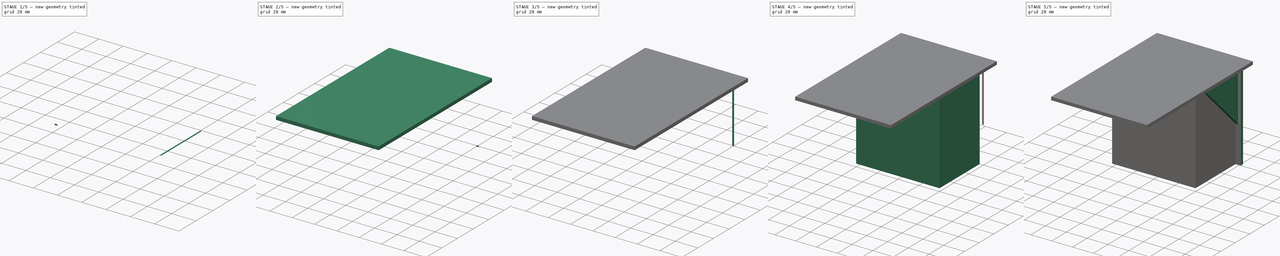
[diagram: build sequence overview — one tinted view per stage of 5, left to right]
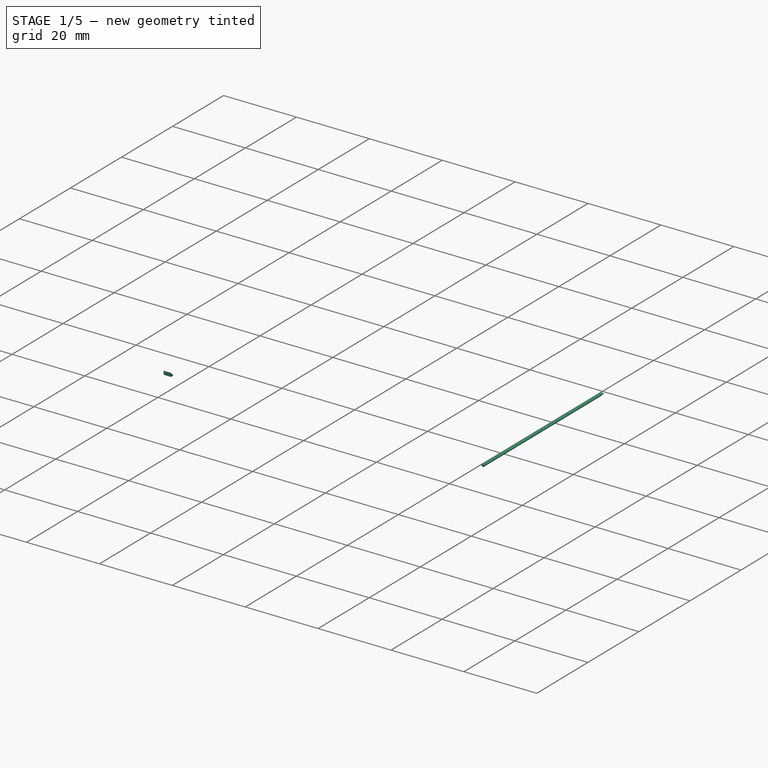
[diagram: stage 1 of 5 — iso view after this stage's code; geometry added in this stage tinted green]
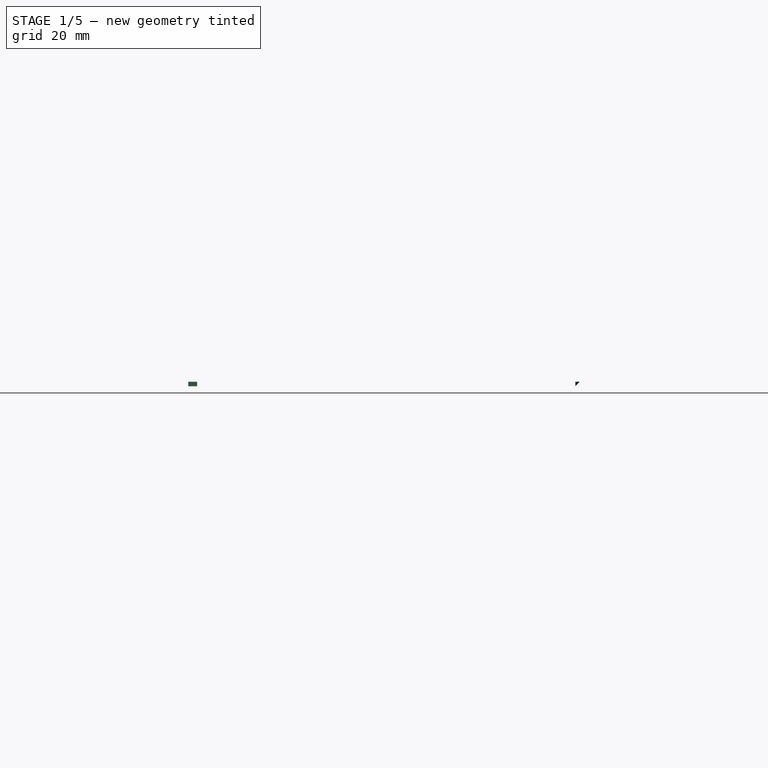
[diagram: stage 1 of 5 — front view after this stage's code; geometry added in this stage tinted green]
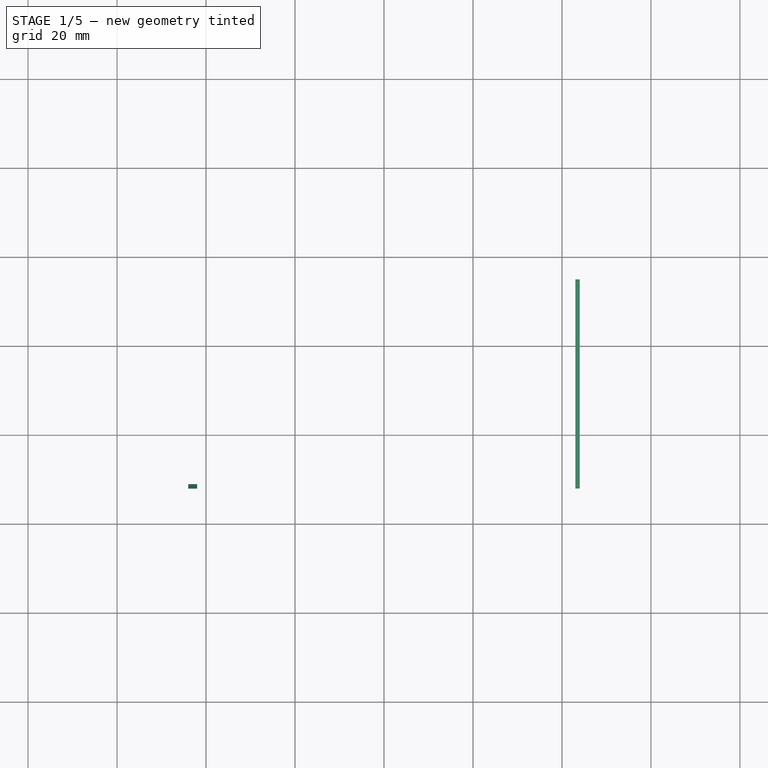
[diagram: stage 1 of 5 — top view after this stage's code; geometry added in this stage tinted green]
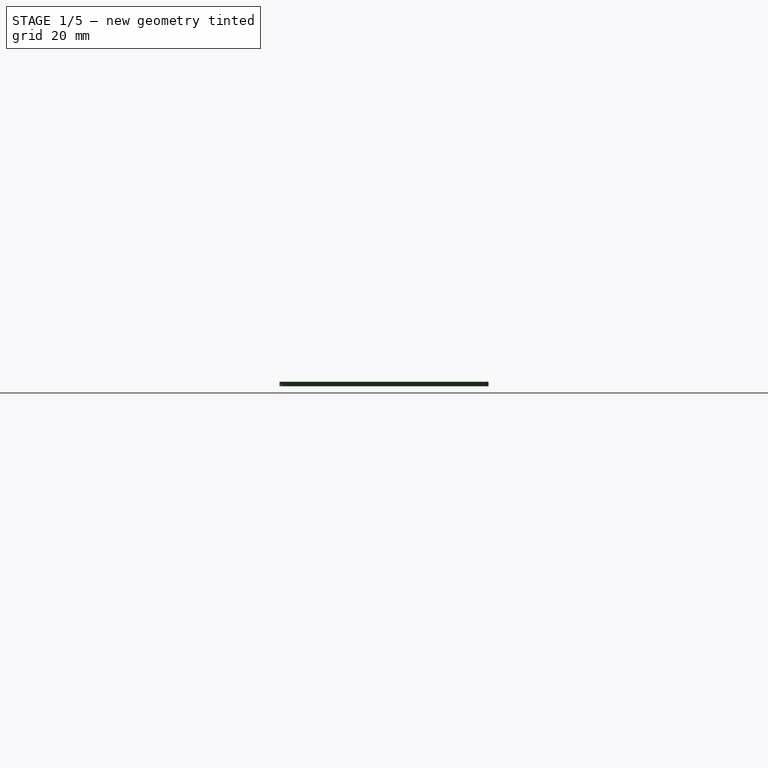
[diagram: stage 1 of 5 — right view after this stage's code; geometry added in this stage tinted green]
FCSTD DOCUMENT  (FreeCAD 0.16R6712 (Git))
Label: Enclosure_supports_with_Hood02
License: All rights reserved
LicenseURL: http://en.wikipedia.org/wiki/All_rights_reserved
objects: Sketcher::SketchObject×15, PartDesign::Pad×15, Part::Chamfer×6, Part::Cut×4, Part::Box×1
note: 56 computed .brp shape members not serialized (recipe doc carries the construction recipe); baked Part::Feature solids carry a one-line shape summary decoded from their .brp

FEATURE [PartDesign::Pad] Pad015
  Length = 1
  Length2 = 100
  Placement = pos=(0,0,82) rot=(0,0,1;0rad)
  Reversed = true
  Sketch = -> Sketch010
  Type = 0
FEATURE [Sketcher::SketchObject] Sketch011
  Placement = pos=(-2,0,0) rot=(0.57735,0.57735,0.57735;2.0944rad)
  sketch-geometry (3):
    g0: LineSegment StartX=8 StartY=82 StartZ=0 EndX=9 EndY=81 EndZ=0
    g1: LineSegment StartX=9 StartY=81 StartZ=0 EndX=8 EndY=81 EndZ=0
    g2: LineSegment StartX=8 StartY=81 StartZ=0 EndX=8 EndY=82 EndZ=0
  constraints (9):
    c: Coincident(g0,g1)
    c: Coincident(g1,g2)
    c: Coincident(g2,g0)
    c: DistanceY(g-1,g0) = 82
    c: DistanceX(g-1,g0) = 8
    c: Distance(g2) = 1
    c: Distance(g1) = 1
    c: DistanceY(g-1,g0) = 81
    c: DistanceX(g-1,g0) = 9
FEATURE [PartDesign::Pad] Pad016
  Length = 2
  Length2 = 100
  Placement = pos=(-2,0,0) rot=(0.57735,0.57735,0.57735;2.0944rad)
  Reversed = true
  Sketch = -> Sketch011
  Type = 0
FEATURE [Sketcher::SketchObject] Sketch012
  Placement = pos=(83,0,0) rot=(0.57735,0.57735,0.57735;2.0944rad)
  sketch-geometry (3):
    g0: LineSegment StartX=8 StartY=81 StartZ=0 EndX=8.99996 EndY=80.991 EndZ=0
    g1: LineSegment StartX=8.99996 StartY=80.991 StartZ=0 EndX=8 EndY=82 EndZ=0
    g2: LineSegment StartX=8 StartY=82 StartZ=0 EndX=8 EndY=81 EndZ=0
  constraints (8):
    c: Coincident(g0,g1)
    c: Coincident(g1,g2)
    c: Coincident(g2,g0)
    c: DistanceY(g1) = 82
    c: DistanceX(g-1,g1) = 8
    c: Distance(g2) = 1
    c: Distance(g0) = 1
    c: DistanceX(g-1,g0) = 8
FEATURE [PartDesign::Pad] Pad017
  Length = 2
  Length2 = 100
  Placement = pos=(83,0,0) rot=(0.57735,0.57735,0.57735;2.0944rad)
  Sketch = -> Sketch012
  Type = 0
FEATURE [Part::Cut] Cut001
  Base = -> Pad015
  Tool = -> Pad017
FEATURE [Part::Chamfer] Chamfer005
  Base = -> Cut001
  Edges = 1 edges r=0.99: [Edge6]
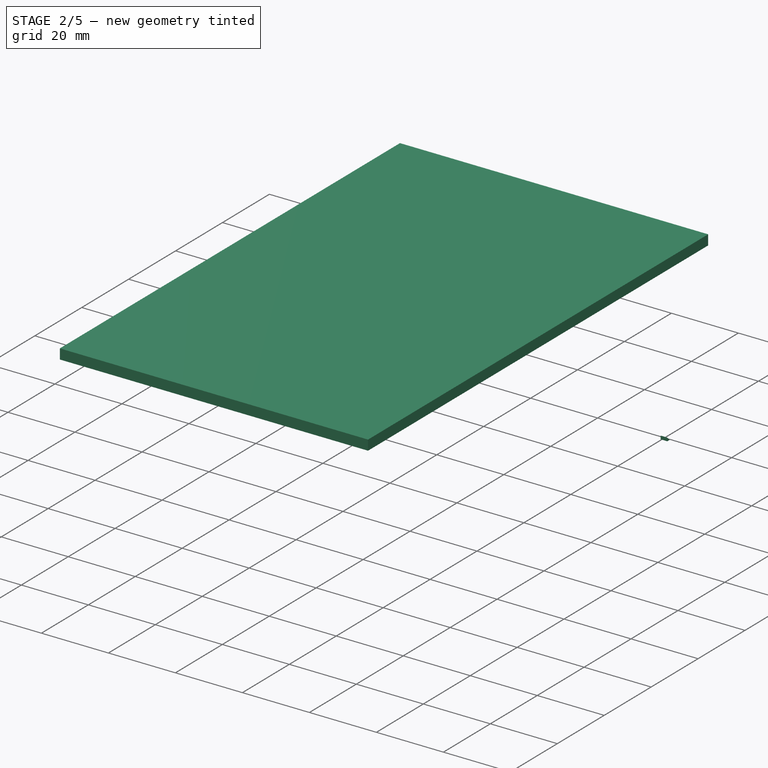
[diagram: stage 2 of 5 — iso view after this stage's code; geometry added in this stage tinted green]
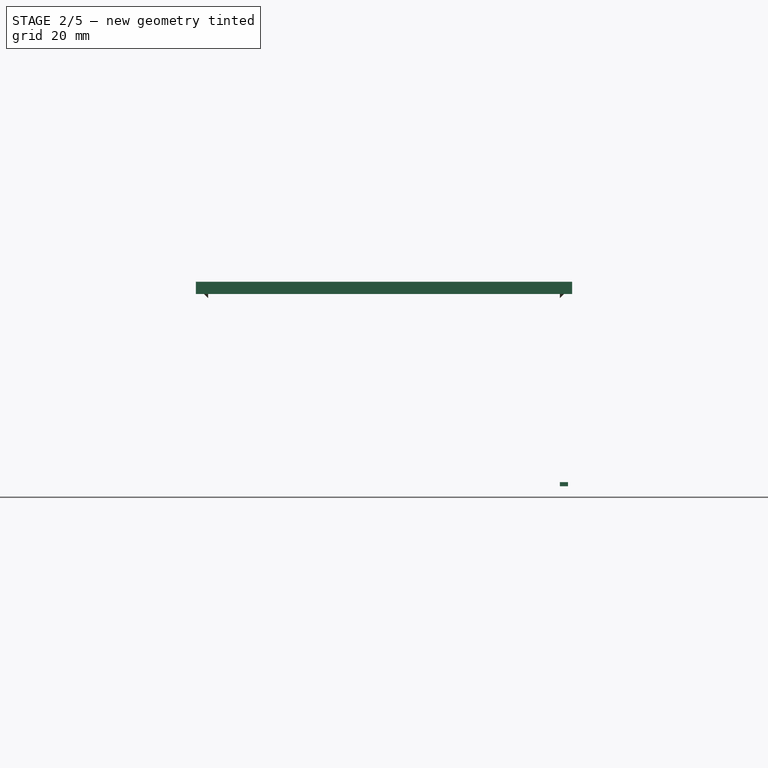
[diagram: stage 2 of 5 — front view after this stage's code; geometry added in this stage tinted green]
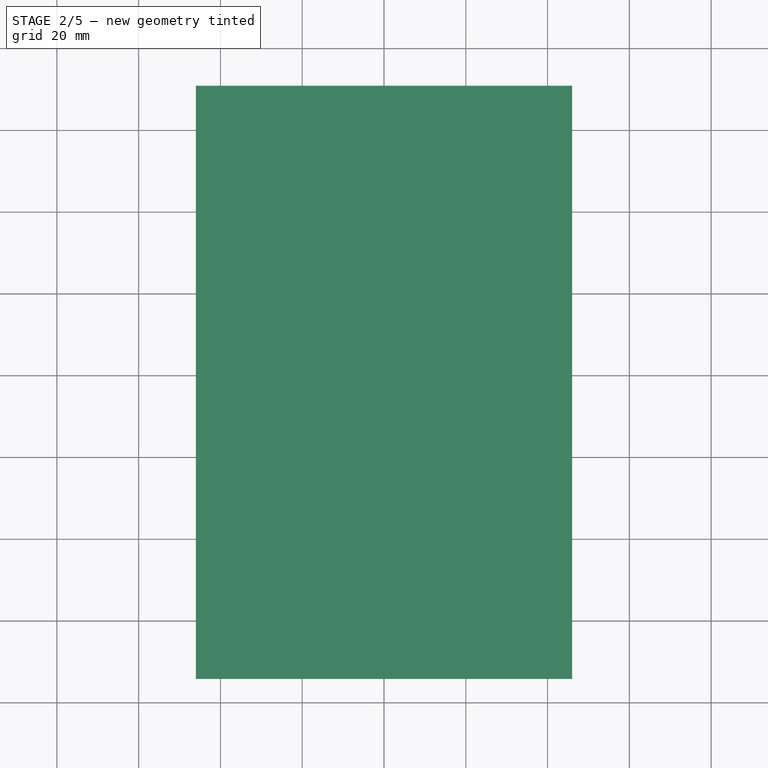
[diagram: stage 2 of 5 — top view after this stage's code; geometry added in this stage tinted green]
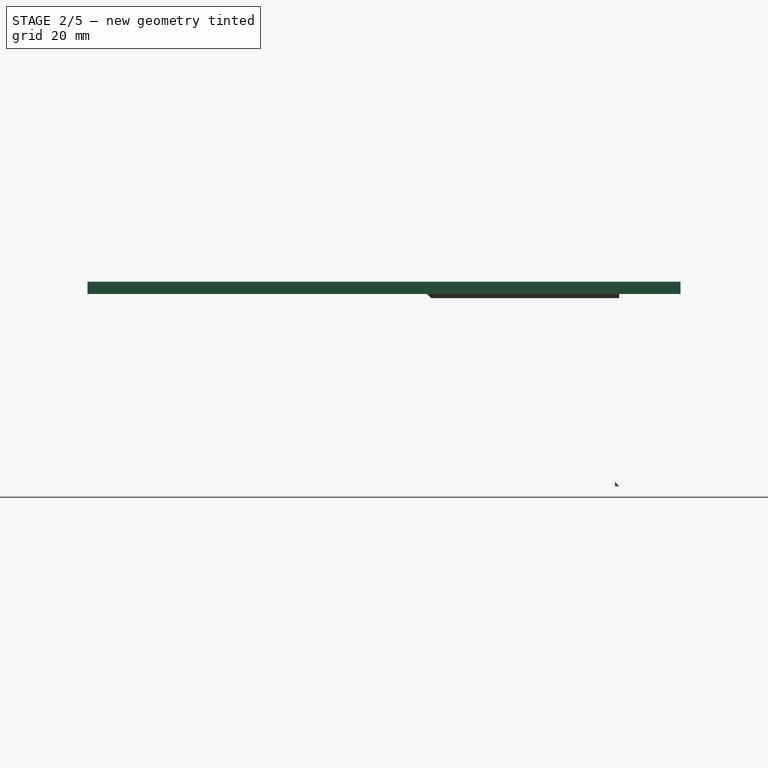
[diagram: stage 2 of 5 — right view after this stage's code; geometry added in this stage tinted green]
FEATURE [PartDesign::Pad] Pad007
  Length = 3
  Length2 = 100
  Placement = pos=(0,0,82) rot=(0,0,1;0rad)
  Sketch = -> Sketch002
  Type = 0
FEATURE [Sketcher::SketchObject] Sketch009
  Placement = pos=(0,0,82) rot=(1,0,0;3.14159rad)
  Support = -> Pad007 [Face5]
  sketch-geometry (4):
    g0: LineSegment StartX=-4 StartY=-8 StartZ=0 EndX=-3 EndY=-8 EndZ=0
    g1: LineSegment StartX=-3 StartY=-8 StartZ=0 EndX=-3 EndY=-55 EndZ=0
    g2: LineSegment StartX=-3 StartY=-55 StartZ=0 EndX=-4 EndY=-55 EndZ=0
    g3: LineSegment StartX=-4 StartY=-55 StartZ=0 EndX=-4 EndY=-8 EndZ=0
  constraints (12):
    c: Coincident(g0,g1)
    c: Coincident(g1,g2)
    c: Coincident(g2,g3)
    c: Coincident(g3,g0)
    c: Horizontal(g0)
    c: Horizontal(g2)
    c: Vertical(g1)
    c: Vertical(g3)
    c: Distance(g0) = 1
    c: Distance(g3) = 47
    c: DistanceY(g0,g-1) = 8
    c: DistanceX(g0,g-1) = 3
FEATURE [Sketcher::SketchObject] Sketch010
  Placement = pos=(0,0,82) rot=(0,0,1;0rad)
  sketch-geometry (4):
    g0: LineSegment StartX=84 StartY=55 StartZ=0 EndX=83 EndY=55 EndZ=0
    g1: LineSegment StartX=83 StartY=55 StartZ=0 EndX=83 EndY=8 EndZ=0
    g2: LineSegment StartX=83 StartY=8 StartZ=0 EndX=84 EndY=8 EndZ=0
    g3: LineSegment StartX=84 StartY=8 StartZ=0 EndX=84 EndY=55 EndZ=0
  constraints (12):
    c: Coincident(g0,g1)
    c: Coincident(g1,g2)
    c: Coincident(g2,g3)
    c: Coincident(g3,g0)
    c: Horizontal(g0)
    c: Horizontal(g2)
    c: Vertical(g1)
    c: Vertical(g3)
    c: Distance(g1) = 47
    c: Distance(g0) = 1
    c: DistanceX(g-1,g2) = 84
    c: DistanceY(g-1,g2) = 8
FEATURE [PartDesign::Pad] Pad014
  Length = 1
  Length2 = 100
  Placement = pos=(0,0,82) rot=(0,0,1;0rad)
  Sketch = -> Sketch009
  Type = 0
FEATURE [Part::Cut] Cut
  Base = -> Pad014
  Tool = -> Pad016
FEATURE [Sketcher::SketchObject] Sketch014
  Placement = pos=(83,0,0) rot=(0.57735,-0.57735,-0.57735;2.0944rad)
  sketch-geometry (3):
    g0: LineSegment StartX=-55 StartY=35 StartZ=0 EndX=-54 EndY=35 EndZ=0
    g1: LineSegment StartX=-54 StartY=35 StartZ=0 EndX=-54 EndY=36 EndZ=0
    g2: LineSegment StartX=-54 StartY=36 StartZ=0 EndX=-55 EndY=35 EndZ=0
  constraints (9):
    c: Coincident(g0,g1)
    c: Coincident(g1,g2)
    c: Coincident(g2,g0)
    c: DistanceX(g0) = -55
    c: DistanceY(g0) = 35
    c: DistanceX(g1) = -54
    c: DistanceY(g1) = 36
    c: Equal(g0,g1)
    c: Distance(g1) = 1
FEATURE [PartDesign::Pad] Pad019
  Length = 2
  Length2 = 100
  Placement = pos=(83,0,0) rot=(0.57735,-0.57735,-0.57735;2.0944rad)
  Reversed = true
  Sketch = -> Sketch014
  Type = 0
FEATURE [Part::Chamfer] Chamfer004
  Base = -> Cut
  Edges = 1 edges r=0.99: [Edge25]
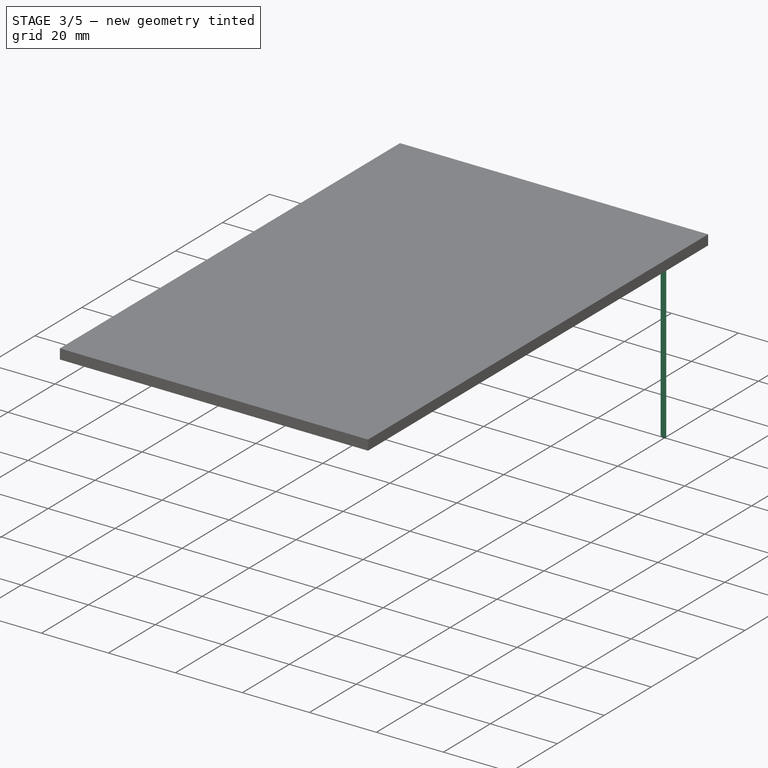
[diagram: stage 3 of 5 — iso view after this stage's code; geometry added in this stage tinted green]
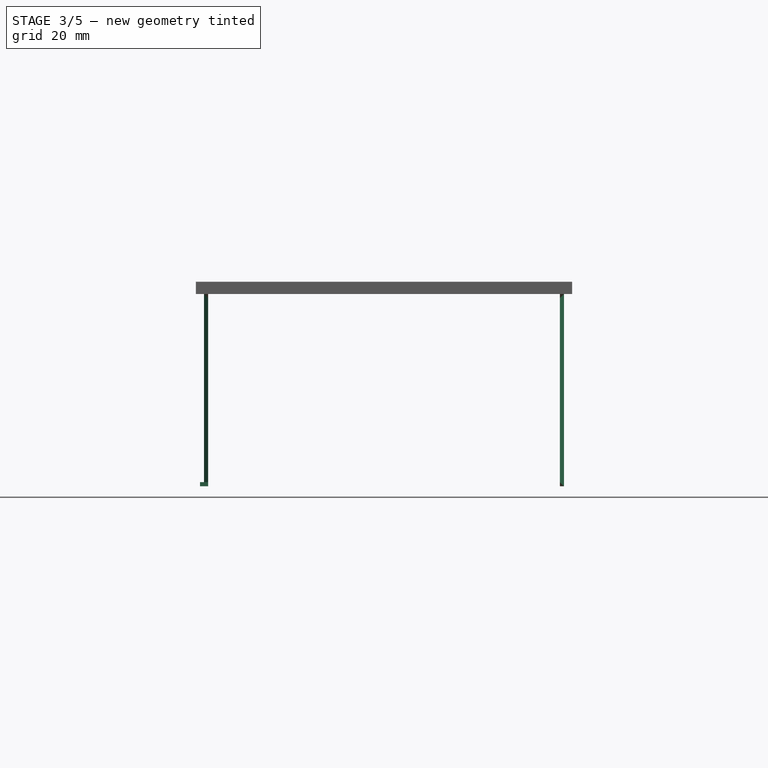
[diagram: stage 3 of 5 — front view after this stage's code; geometry added in this stage tinted green]
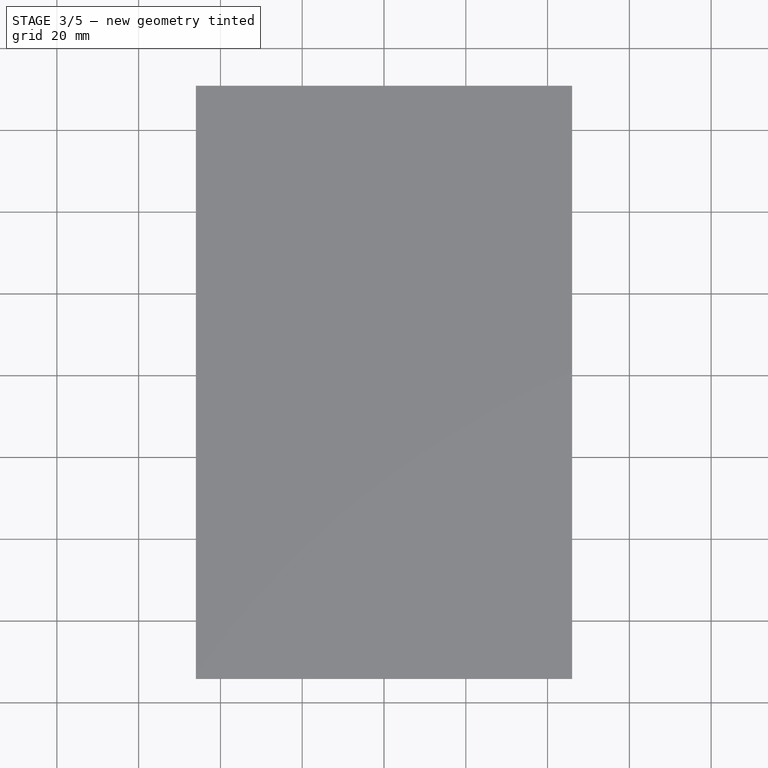
[diagram: stage 3 of 5 — top view after this stage's code; geometry added in this stage tinted green]
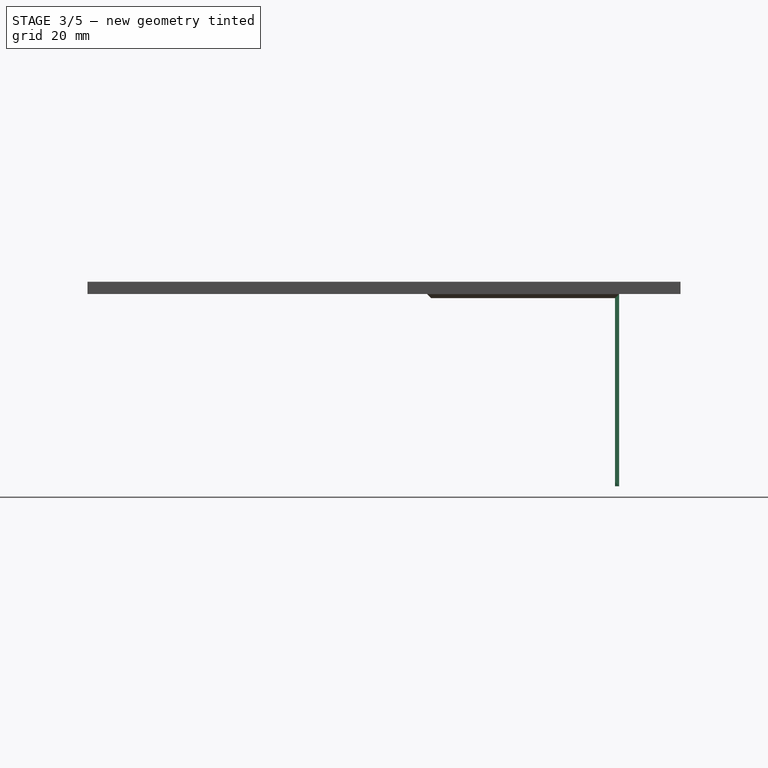
[diagram: stage 3 of 5 — right view after this stage's code; geometry added in this stage tinted green]
FEATURE [Sketcher::SketchObject] Sketch007
  Placement = pos=(-3,0,0) rot=(0.57735,0.57735,0.57735;2.0944rad)
  sketch-geometry (4):
    g0: LineSegment StartX=55 StartY=82 StartZ=0 EndX=54 EndY=82 EndZ=0
    g1: LineSegment StartX=54 StartY=82 StartZ=0 EndX=54 EndY=35 EndZ=0
    g2: LineSegment StartX=54 StartY=35 StartZ=0 EndX=55 EndY=35 EndZ=0
    g3: LineSegment StartX=55 StartY=35 StartZ=0 EndX=55 EndY=82 EndZ=0
  constraints (12):
    c: Coincident(g0,g1)
    c: Coincident(g1,g2)
    c: Coincident(g2,g3)
    c: Coincident(g3,g0)
    c: Horizontal(g0)
    c: Horizontal(g2)
    c: Vertical(g1)
    c: Vertical(g3)
    c: Distance(g1) = 47
    c: Distance(g0) = 1
    c: DistanceX(g-1,g2) = 55
    c: DistanceY(g-1,g0) = 82
FEATURE [PartDesign::Pad] Pad012
  Length = 1
  Length2 = 100
  Placement = pos=(-3,0,0) rot=(0.57735,0.57735,0.57735;2.0944rad)
  Reversed = true
  Sketch = -> Sketch007
  Type = 0
FEATURE [Sketcher::SketchObject] Sketch008
  Placement = pos=(83,0,0) rot=(0.57735,0.57735,0.57735;2.0944rad)
  sketch-geometry (4):
    g0: LineSegment StartX=54 StartY=82 StartZ=0 EndX=55 EndY=82 EndZ=0
    g1: LineSegment StartX=55 StartY=82 StartZ=0 EndX=55 EndY=35 EndZ=0
    g2: LineSegment StartX=55 StartY=35 StartZ=0 EndX=54 EndY=35 EndZ=0
    g3: LineSegment StartX=54 StartY=35 StartZ=0 EndX=54 EndY=82 EndZ=0
  constraints (12):
    c: Coincident(g0,g1)
    c: Coincident(g1,g2)
    c: Coincident(g2,g3)
    c: Coincident(g3,g0)
    c: Horizontal(g0)
    c: Horizontal(g2)
    c: Vertical(g1)
    c: Vertical(g3)
    c: Distance(g1) = 47
    c: Distance(g2) = 1
    c: DistanceX(g-1,g1) = 55
    c: DistanceY(g-1,g0) = 82
FEATURE [PartDesign::Pad] Pad013
  Length = 1
  Length2 = 100
  Placement = pos=(83,0,0) rot=(0.57735,0.57735,0.57735;2.0944rad)
  Sketch = -> Sketch008
  Type = 0
FEATURE [Part::Chamfer] Chamfer002
  Base = -> Pad013
  Edges = 1 edges r=0.99: [Edge12]
FEATURE [Part::Chamfer] Chamfer003
  Base = -> Pad012
  Edges = 1 edges r=0.99: [Edge7]
FEATURE [Sketcher::SketchObject] Sketch013
  Placement = pos=(-3,0,0) rot=(0.57735,0.57735,0.57735;2.0944rad)
  sketch-geometry (3):
    g0: LineSegment StartX=54 StartY=36 StartZ=0 EndX=54 EndY=35 EndZ=0
    g1: LineSegment StartX=54 StartY=35 StartZ=0 EndX=55 EndY=35 EndZ=0
    g2: LineSegment StartX=55 StartY=35 StartZ=0 EndX=54 EndY=36 EndZ=0
  constraints (9):
    c: Coincident(g0,g1)
    c: Horizontal(g1)
    c: Coincident(g1,g2)
    c: Coincident(g2,g0)
    c: DistanceY(g-1,g0) = 36
    c: DistanceX(g-1,g0) = 54
    c: Distance(g1) = 1
    c: DistanceY(g-1,g1) = 35
    c: DistanceX(g-1,g1) = 55
FEATURE [PartDesign::Pad] Pad018
  Length = 2
  Length2 = 100
  Placement = pos=(-3,0,0) rot=(0.57735,0.57735,0.57735;2.0944rad)
  Reversed = true
  Sketch = -> Sketch013
  Type = 0
FEATURE [Part::Cut] Cut003
  Base = -> Chamfer002
  Tool = -> Pad019
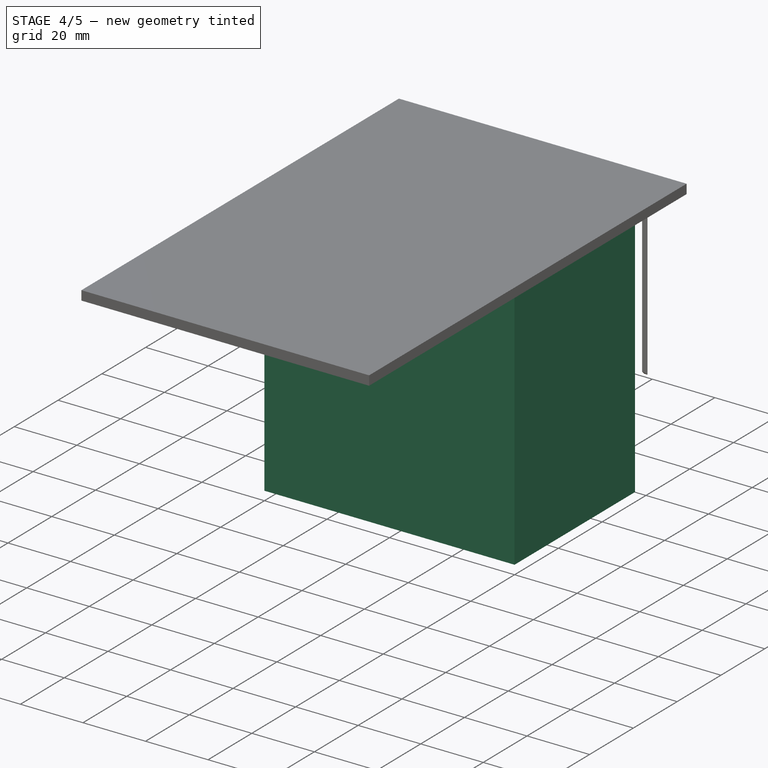
[diagram: stage 4 of 5 — iso view after this stage's code; geometry added in this stage tinted green]
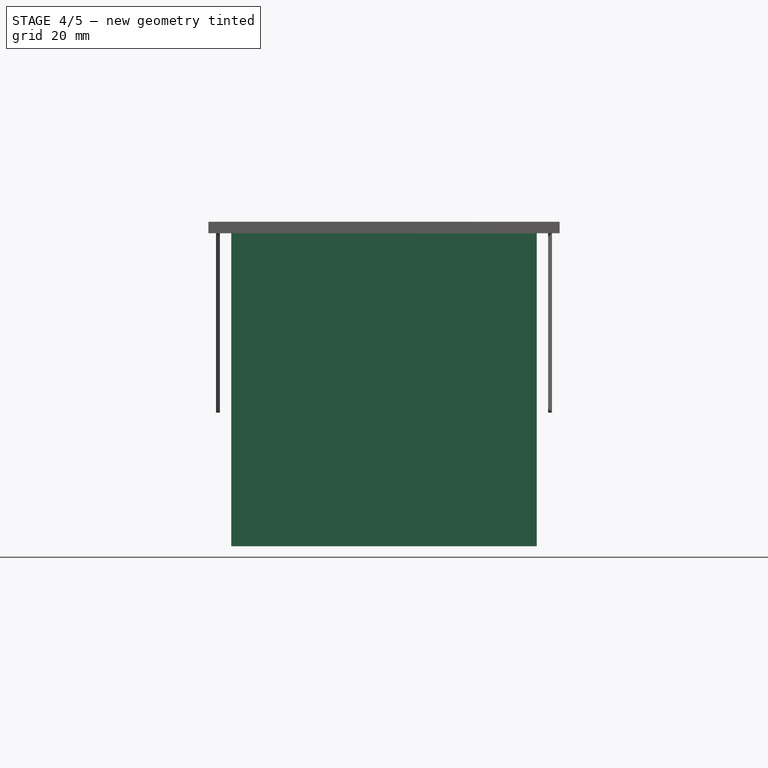
[diagram: stage 4 of 5 — front view after this stage's code; geometry added in this stage tinted green]
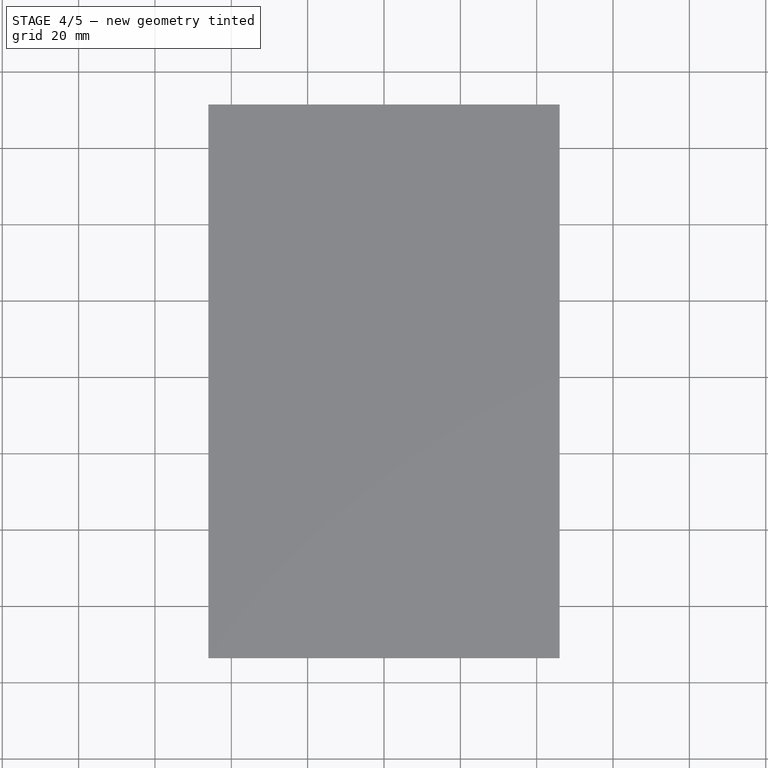
[diagram: stage 4 of 5 — top view after this stage's code; geometry added in this stage tinted green]
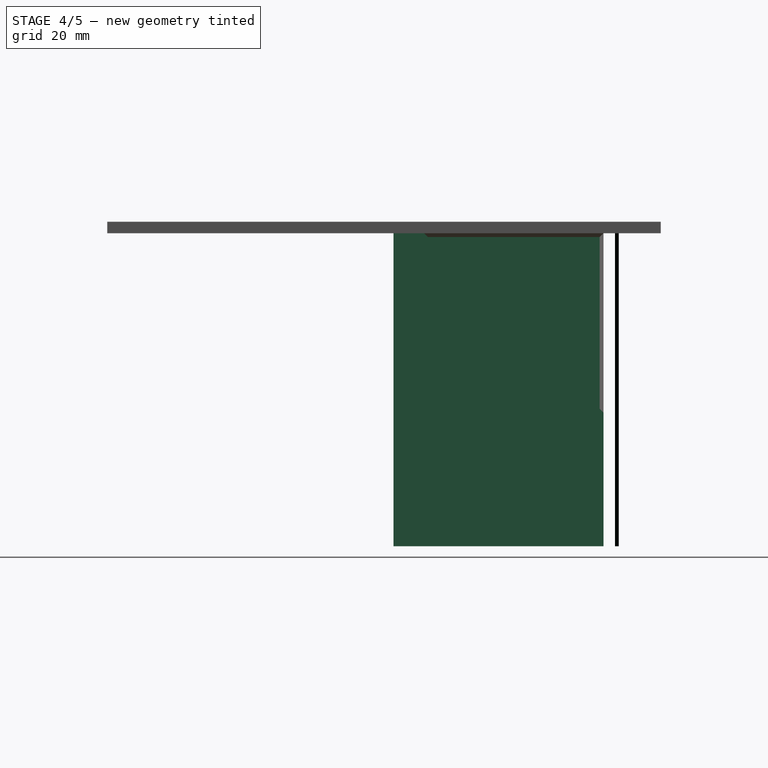
[diagram: stage 4 of 5 — right view after this stage's code; geometry added in this stage tinted green]
FEATURE [Part::Box] Box  label="Cube"
  Height = 82
  Length = 80
  Width = 55
FEATURE [Sketcher::SketchObject] Sketch006
  Placement = pos=(0,59,0) rot=(1,0,0;1.5708rad)
  sketch-geometry (8):
    g0: LineSegment StartX=6 StartY=82 StartZ=0 EndX=7 EndY=82 EndZ=0
    g1: LineSegment StartX=7 StartY=82 StartZ=0 EndX=7 EndY=0 EndZ=0
    g2: LineSegment StartX=7 StartY=0 StartZ=0 EndX=6 EndY=0 EndZ=0
    g3: LineSegment StartX=6 StartY=0 StartZ=0 EndX=6 EndY=82 EndZ=0
    g4: LineSegment StartX=74 StartY=82 StartZ=0 EndX=73 EndY=82 EndZ=0
    g5: LineSegment StartX=73 StartY=82 StartZ=0 EndX=73 EndY=0 EndZ=0
    g6: LineSegment StartX=73 StartY=0 StartZ=0 EndX=74 EndY=0 EndZ=0
    g7: LineSegment StartX=74 StartY=0 StartZ=0 EndX=74 EndY=82 EndZ=0
  constraints (23):
    c: Coincident(g0,g1)
    c: Coincident(g1,g2)
    c: Coincident(g2,g3)
    c: Coincident(g3,g0)
    c: Horizontal(g0)
    c: Horizontal(g2)
    c: Vertical(g1)
    c: Vertical(g3)
    c: Coincident(g4,g5)
    c: Coincident(g5,g6)
    c: Coincident(g6,g7)
    c: Coincident(g7,g4)
    c: Horizontal(g4)
    c: Horizontal(g6)
    c: Vertical(g5)
    c: Vertical(g7)
    c: PointOnObject(g5,g-1)
    c: Equal(g3,g7)
    c: Distance(g3) = 82
    c: Equal(g0,g4)
    c: Distance(g0) = 1
    c: DistanceX(g-1,g2) = 6
    c: DistanceX(g-1,g6) = 74
FEATURE [PartDesign::Pad] Pad011
  Length = 1
  Length2 = 100
  Placement = pos=(0,59,0) rot=(1,0,0;1.5708rad)
  Sketch = -> Sketch006
  Type = 0
FEATURE [Part::Chamfer] Chamfer
  Base = -> Pad011
  Edges = 1 edges r=0.99: [Edge11]
FEATURE [Part::Chamfer] Chamfer001
  Base = -> Chamfer
  Edges = 1 edges r=0.99: [Edge26]
FEATURE [Part::Cut] Cut002
  Base = -> Chamfer003
  Tool = -> Pad018
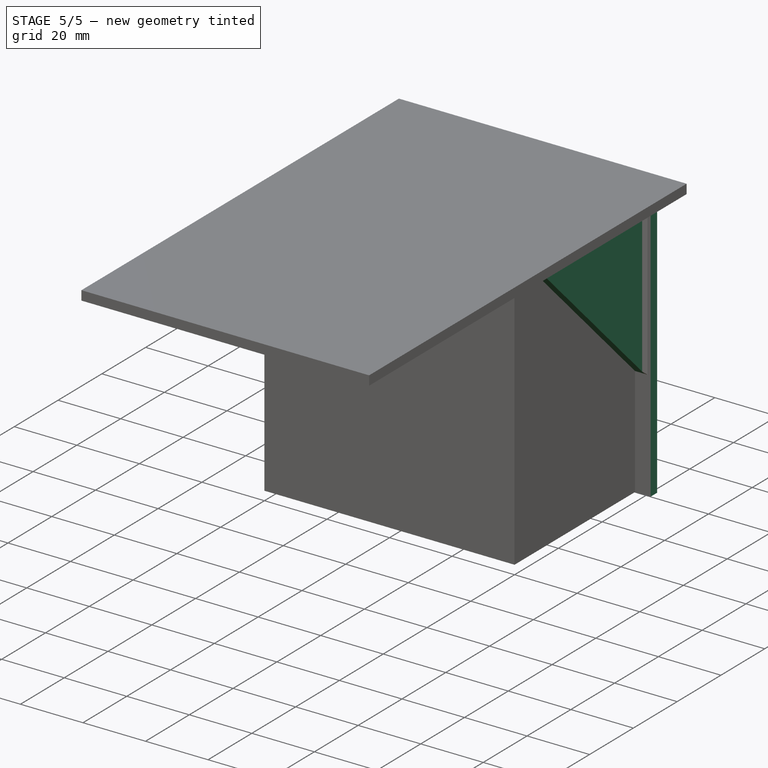
[diagram: stage 5 of 5 — iso view after this stage's code; geometry added in this stage tinted green]
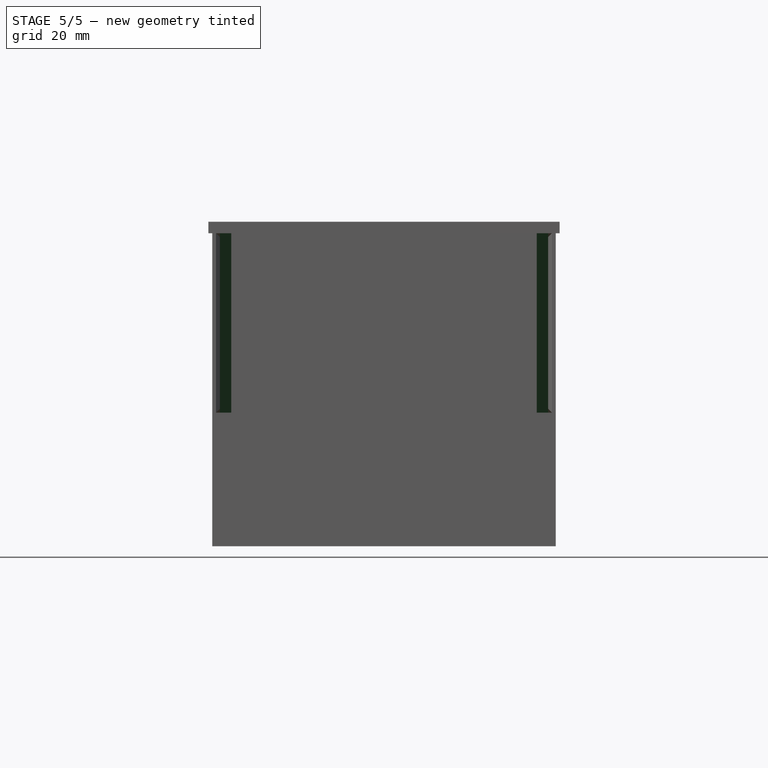
[diagram: stage 5 of 5 — front view after this stage's code; geometry added in this stage tinted green]
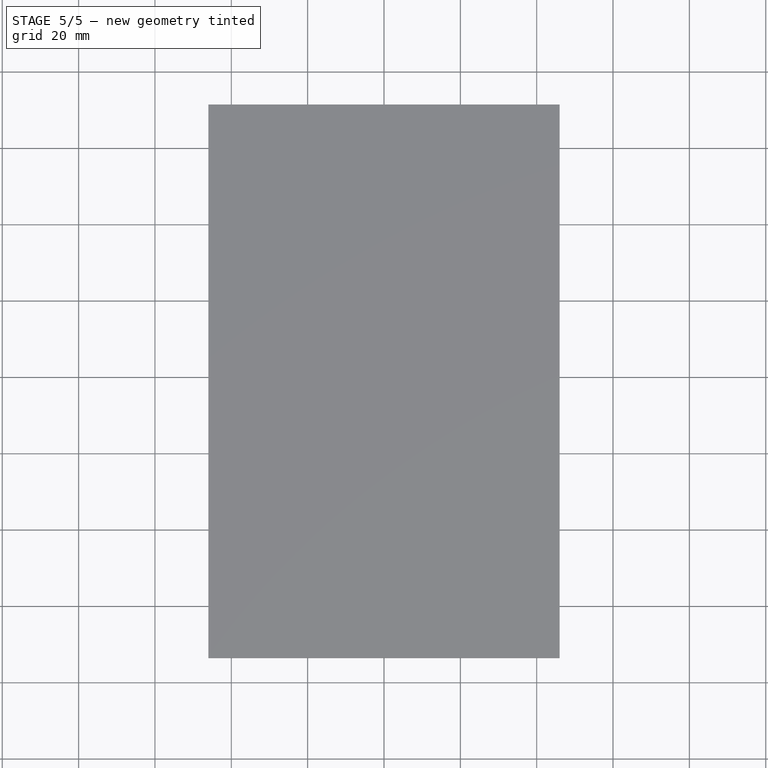
[diagram: stage 5 of 5 — top view after this stage's code; geometry added in this stage tinted green]
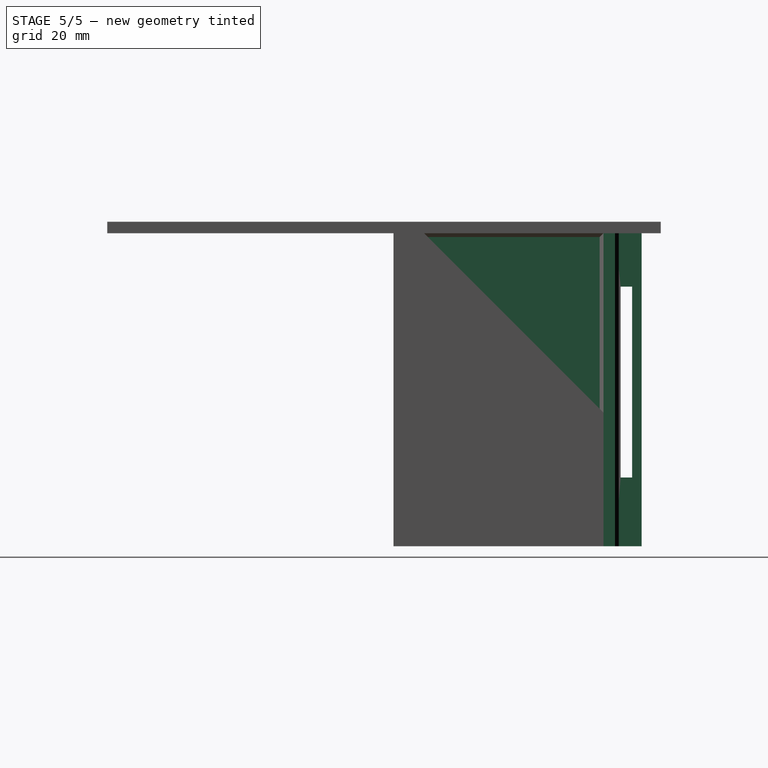
[diagram: stage 5 of 5 — right view after this stage's code; geometry added in this stage tinted green]
FEATURE [Sketcher::SketchObject] Sketch001
  Placement = pos=(0,55,0) rot=(0,0.707107,0.707107;3.14159rad)
  sketch-geometry (12):
    g0: Circle CenterX=-65 CenterY=76 CenterZ=0 NormalX=0 NormalY=0 NormalZ=1 Radius=2
    g1: Circle CenterX=-15 CenterY=76 CenterZ=0 NormalX=0 NormalY=0 NormalZ=1 Radius=2
    g2: Circle CenterX=-65 CenterY=6 CenterZ=0 NormalX=0 NormalY=0 NormalZ=1 Radius=2
    g3: Circle CenterX=-15 CenterY=6 CenterZ=0 NormalX=0 NormalY=0 NormalZ=1 Radius=2
    g4: LineSegment StartX=-20 StartY=82 StartZ=0 EndX=5 EndY=82 EndZ=0
    g5: LineSegment StartX=5 StartY=82 StartZ=0 EndX=5 EndY=0 EndZ=0
    g6: LineSegment StartX=5 StartY=0 StartZ=0 EndX=-20 EndY=0 EndZ=0
    g7: LineSegment StartX=-20 StartY=0 StartZ=0 EndX=-20 EndY=82 EndZ=0
    g8: LineSegment StartX=-60 StartY=82 StartZ=0 EndX=-85 EndY=82 EndZ=0
    g9: LineSegment StartX=-85 StartY=82 StartZ=0 EndX=-85 EndY=0 EndZ=0
    g10: LineSegment StartX=-85 StartY=0 StartZ=0 EndX=-60 EndY=0 EndZ=0
    g11: LineSegment StartX=-60 StartY=0 StartZ=0 EndX=-60 EndY=82 EndZ=0
  constraints (36):
    c: Radius(g0) = 2
    c: Equal(g2,g3)
    c: Equal(g3,g0)
    c: Equal(g0,g1)
    c: DistanceX(g3) = -15
    c: DistanceY(g3) = 6
    c: DistanceX(g2) = -65
    c: DistanceY(g2) = 6
    c: DistanceX(g0) = -65
    c: DistanceY(g0) = 76
    c: DistanceX(g1) = -15
    c: Coincident(g4,g5)
    c: Coincident(g5,g6)
    c: Coincident(g6,g7)
    c: Coincident(g7,g4)
    c: Horizontal(g4)
    c: Horizontal(g6)
    c: Vertical(g5)
    c: Vertical(g7)
    c: Coincident(g8,g9)
    c: Coincident(g9,g10)
    c: Coincident(g10,g11)
    c: Coincident(g11,g8)
    c: Horizontal(g8)
    c: Horizontal(g10)
    c: Vertical(g9)
    c: Vertical(g11)
    c: PointOnObject(g9,g-1)
    c: Distance(g10) = 25
    c: Distance(g6) = 25
    c: DistanceX(g2,g10) = 5
    c: DistanceX(g6,g3) = 5
    c: Distance(g9) = 82
    c: Distance(g5) = 82
    c: DistanceY(g1,g4) = 6
    c: DistanceY(g1) = 76
FEATURE [Sketcher::SketchObject] Sketch002
  Placement = pos=(0,0,82) rot=(0,0,1;0rad)
  sketch-geometry (4):
    g0: LineSegment StartX=-6 StartY=70 StartZ=0 EndX=86 EndY=70 EndZ=0
    g1: LineSegment StartX=86 StartY=70 StartZ=0 EndX=86 EndY=-75 EndZ=0
    g2: LineSegment StartX=86 StartY=-75 StartZ=0 EndX=-6 EndY=-75 EndZ=0
    g3: LineSegment StartX=-6 StartY=-75 StartZ=0 EndX=-6 EndY=70 EndZ=0
  constraints (12):
    c: Coincident(g0,g1)
    c: Coincident(g1,g2)
    c: Coincident(g2,g3)
    c: Coincident(g3,g0)
    c: Horizontal(g0)
    c: Horizontal(g2)
    c: Vertical(g1)
    c: Vertical(g3)
    c: Distance(g1) = 145
    c: Distance(g2) = 92
    c: DistanceX(g0,g-1) = 6
    c: DistanceY(g-1,g0) = 70
FEATURE [Sketcher::SketchObject] Sketch003
  Placement = pos=(10,0,0) rot=(0.57735,-0.57735,-0.57735;2.0944rad)
  sketch-geometry (8):
    g0: LineSegment StartX=-65 StartY=82 StartZ=0 EndX=-58 EndY=82 EndZ=0
    g1: LineSegment StartX=-58 StartY=82 StartZ=0 EndX=-58 EndY=0 EndZ=0
    g2: LineSegment StartX=-58 StartY=0 StartZ=0 EndX=-65 EndY=0 EndZ=0
    g3: LineSegment StartX=-65 StartY=0 StartZ=0 EndX=-65 EndY=82 EndZ=0
    g4: LineSegment StartX=-62.5 StartY=68 StartZ=0 EndX=-59.5 EndY=68 EndZ=0
    g5: LineSegment StartX=-59.5 StartY=68 StartZ=0 EndX=-59.5 EndY=18 EndZ=0
    g6: LineSegment StartX=-59.5 StartY=18 StartZ=0 EndX=-62.5 EndY=18 EndZ=0
    g7: LineSegment StartX=-62.5 StartY=18 StartZ=0 EndX=-62.5 EndY=68 EndZ=0
  constraints (24):
    c: Coincident(g0,g1)
    c: Coincident(g1,g2)
    c: Coincident(g2,g3)
    c: Coincident(g3,g0)
    c: Horizontal(g0)
    c: Horizontal(g2)
    c: Vertical(g1)
    c: Vertical(g3)
    c: DistanceX(g0,g-1) = 58
    c: Distance(g0) = 7
    c: Distance(g3) = 82
    c: Coincident(g4,g5)
    c: Coincident(g5,g6)
    c: Coincident(g6,g7)
    c: Coincident(g7,g4)
    c: Horizontal(g4)
    c: Horizontal(g6)
    c: Vertical(g5)
    c: Vertical(g7)
    c: Distance(g6) = 3
    c: DistanceY(g-1,g1) = 0
    c: DistanceY(g2,g6) = 18
    c: DistanceX(g2,g6) = 2.5
    c: Distance(g7) = 50
FEATURE [Sketcher::SketchObject] Sketch004
  Placement = pos=(70,0,0) rot=(0.57735,0.57735,0.57735;2.0944rad)
  sketch-geometry (8):
    g0: LineSegment StartX=58 StartY=82 StartZ=0 EndX=65 EndY=82 EndZ=0
    g1: LineSegment StartX=65 StartY=82 StartZ=0 EndX=65 EndY=0 EndZ=0
    g2: LineSegment StartX=65 StartY=0 StartZ=0 EndX=58 EndY=0 EndZ=0
    g3: LineSegment StartX=58 StartY=0 StartZ=0 EndX=58 EndY=82 EndZ=0
    g4: LineSegment StartX=59.5 StartY=68 StartZ=0 EndX=62.5 EndY=68 EndZ=0
    g5: LineSegment StartX=62.5 StartY=68 StartZ=0 EndX=62.5 EndY=18 EndZ=0
    g6: LineSegment StartX=62.5 StartY=18 StartZ=0 EndX=59.5 EndY=18 EndZ=0
    g7: LineSegment StartX=59.5 StartY=18 StartZ=0 EndX=59.5 EndY=68 EndZ=0
  constraints (24):
    c: Coincident(g0,g1)
    c: Coincident(g1,g2)
    c: Coincident(g2,g3)
    c: Coincident(g3,g0)
    c: Horizontal(g0)
    c: Horizontal(g2)
    c: Vertical(g1)
    c: Vertical(g3)
    c: Distance(g0) = 7
    c: DistanceX(g-1,g2) = 58
    c: DistanceY(g-1,g2) = 0
    c: Distance(g1) = 82
    c: Coincident(g4,g5)
    c: Coincident(g5,g6)
    c: Coincident(g6,g7)
    c: Coincident(g7,g4)
    c: Horizontal(g4)
    c: Horizontal(g6)
    c: Vertical(g5)
    c: Vertical(g7)
    c: Distance(g6) = 3
    c: DistanceX(g2,g6) = 1.5
    c: DistanceY(g2,g6) = 18
    c: Distance(g5) = 50
FEATURE [PartDesign::Pad] Pad
  Length = 3
  Length2 = 100
  Placement = pos=(0,55,0) rot=(0,0.707107,0.707107;3.14159rad)
  Sketch = -> Sketch001
  Type = 0
FEATURE [Sketcher::SketchObject] Sketch
  Placement = pos=(0,0,0) rot=(0.57735,-0.57735,-0.57735;2.0944rad)
  sketch-geometry (3):
    g0: LineSegment StartX=-55 StartY=82 StartZ=0 EndX=-55 EndY=35 EndZ=0
    g1: LineSegment StartX=-55 StartY=35 StartZ=0 EndX=-8 EndY=82 EndZ=0
    g2: LineSegment StartX=-8 StartY=82 StartZ=0 EndX=-55 EndY=82 EndZ=0
  constraints (10):
    c: Vertical(g0)
    c: Coincident(g0,g1)
    c: Coincident(g1,g2)
    c: Horizontal(g2)
    c: DistanceX(g0,g-1) = 55
    c: DistanceY(g-1,g1) = 82
    c: DistanceY(g-1,g0) = 35
    c: Equal(g2,g0)
    c: DistanceX(g1,g-1) = 8
    c: DistanceX(g2,g-1) = 55
FEATURE [Sketcher::SketchObject] Sketch005
  Placement = pos=(80,0,0) rot=(0.57735,0.57735,0.57735;2.0944rad)
  sketch-geometry (3):
    g0: LineSegment StartX=8 StartY=82 StartZ=0 EndX=55 EndY=35 EndZ=0
    g1: LineSegment StartX=55 StartY=35 StartZ=0 EndX=55.09 EndY=82 EndZ=0
    g2: LineSegment StartX=55.09 StartY=82 StartZ=0 EndX=8 EndY=82 EndZ=0
  constraints (8):
    c: Coincident(g0,g1)
    c: Coincident(g2,g0)
    c: Horizontal(g2)
    c: DistanceY(g-1,g0) = 35
    c: DistanceX(g-1,g0) = 55
    c: DistanceX(g-1,g0) = 8
    c: DistanceY(g-1,g0) = 82
    c: Coincident(g2,g1)
FEATURE [PartDesign::Pad] Pad006
  Length = 3
  Length2 = 100
  Placement = pos=(10,0,0) rot=(0.57735,-0.57735,-0.57735;2.0944rad)
  Sketch = -> Sketch003
  Type = 0
FEATURE [PartDesign::Pad] Pad008
  Length = 3
  Length2 = 100
  Placement = pos=(70,0,0) rot=(0.57735,0.57735,0.57735;2.0944rad)
  Sketch = -> Sketch004
  Type = 0
FEATURE [PartDesign::Pad] Pad009
  Length = 3
  Length2 = 100
  Placement = pos=(80,0,0) rot=(0.57735,0.57735,0.57735;2.0944rad)
  Sketch = -> Sketch005
  Type = 0
FEATURE [PartDesign::Pad] Pad010
  Length = 3
  Length2 = 100
  Placement = pos=(0,0,0) rot=(0.57735,-0.57735,-0.57735;2.0944rad)
  Sketch = -> Sketch
  Type = 0
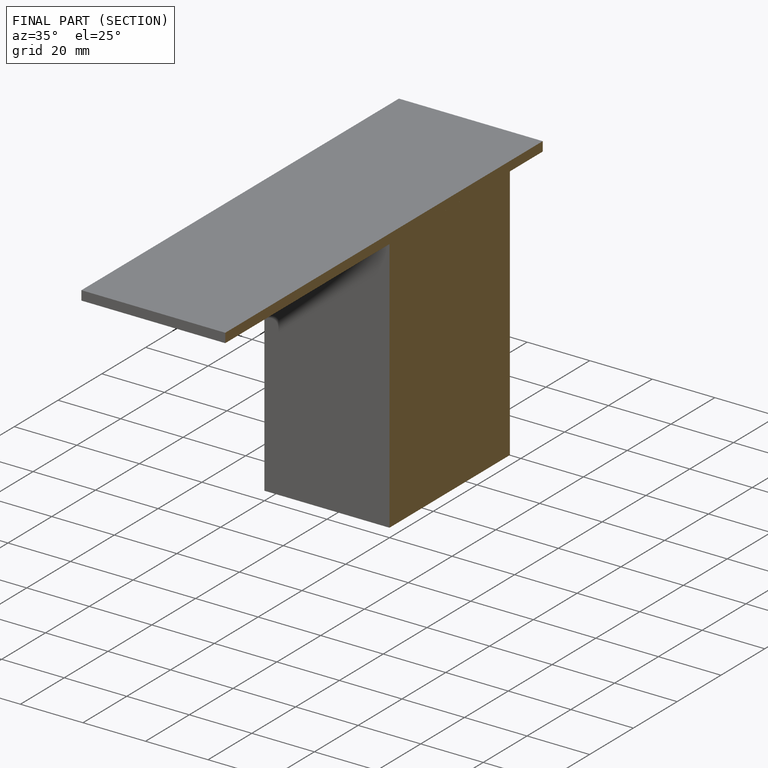
[diagram: finished part — half-section view (interior)]
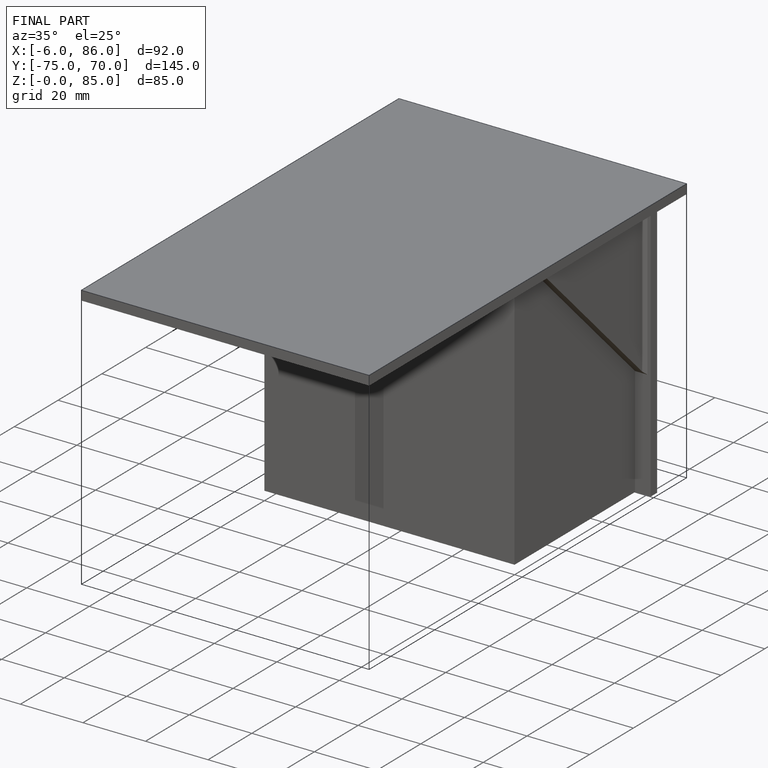
[diagram: finished part — iso view with bounding-box wireframe]
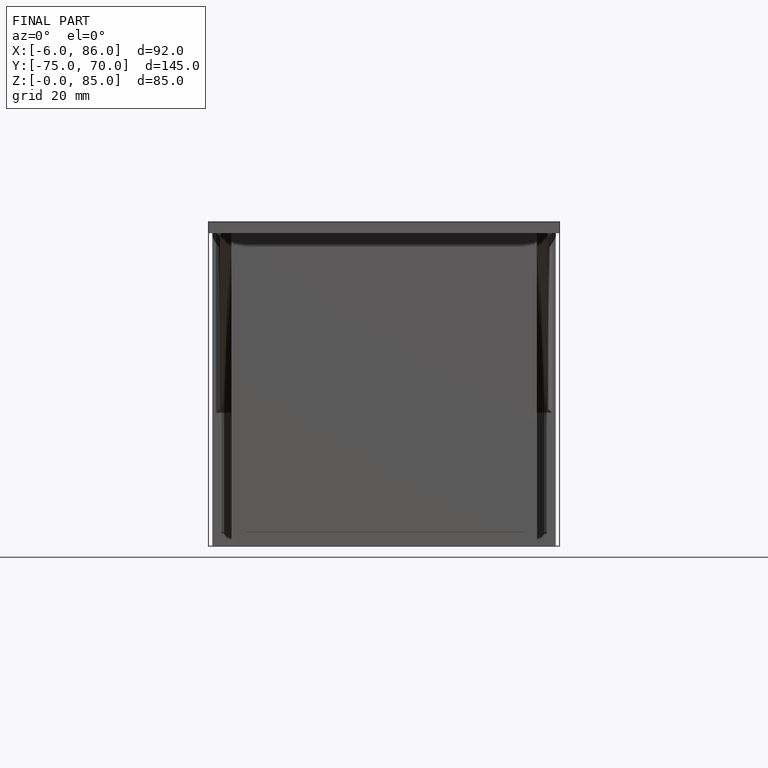
[diagram: finished part — front view with bounding-box wireframe]
